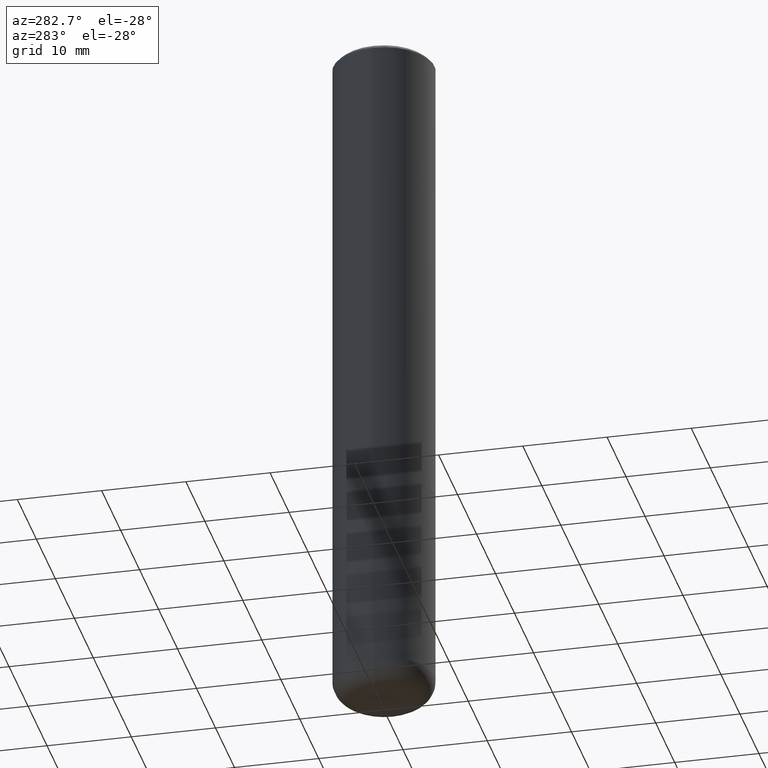
[diagram: clean part render]
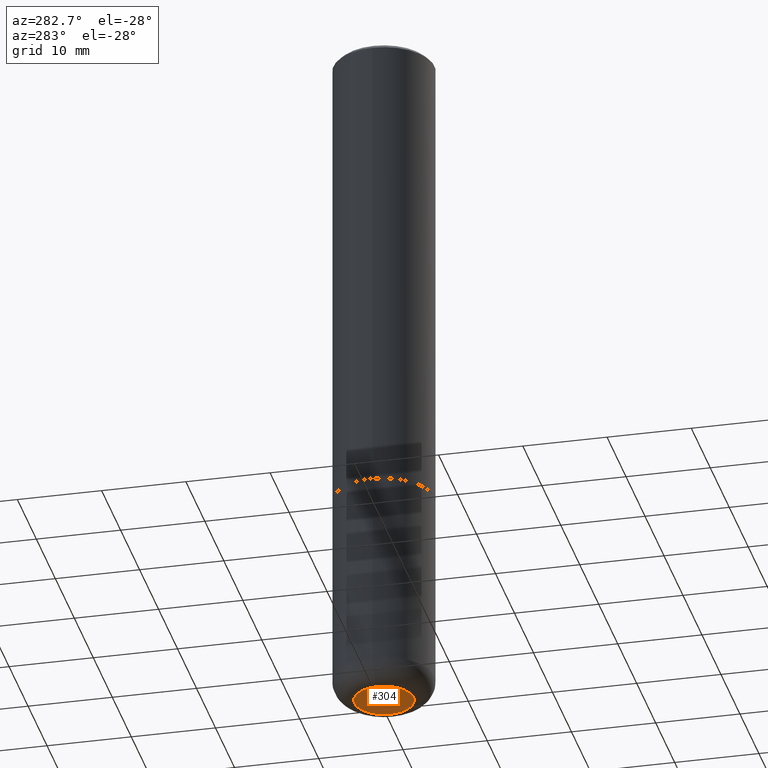
[diagram: same view with one face highlighted and labeled with its STEP entity id]
A machine part, auxiliary view. The second image highlights one B-rep face of the part: STEP entity #304.
In plain terms, the highlighted planar face has unit normal (0, -0, -1).
Its self-contained STEP definition (entity closure, byte-faithful):
#6 = EDGE_CURVE ( 'NONE', #20, #370, #293, .T. ) ;
#12 = DIRECTION ( 'NONE',  ( 2.438088387897960049E-29, -3.491481338843145188E-15, -1.000000000000000000 ) ) ;
#14 = PLANE ( 'NONE',  #103 ) ;
#20 = VERTEX_POINT ( 'NONE', #84 ) ;
#38 = DIRECTION ( 'NONE',  ( -1.000000000000000000, 6.982962677686265922E-15, -4.876176775795935793E-29 ) ) ;
#41 = EDGE_CURVE ( 'NONE', #370, #20, #268, .T. ) ;
#42 = CARTESIAN_POINT ( 'NONE',  ( -0.1378000000000000058, -9.908617773195273284E-15, -3.267700000000000937 ) ) ;
#54 = CARTESIAN_POINT ( 'NONE',  ( 7.991058417971172834E-29, -1.140911357093774960E-14, -3.267700000000000937 ) ) ;
#84 = CARTESIAN_POINT ( 'NONE',  ( 0.1378000000000000058, -1.237136582792291707E-14, -3.267700000000000937 ) ) ;
#95 = AXIS2_PLACEMENT_3D ( 'NONE', #54, #100, #113 ) ;
#100 = DIRECTION ( 'NONE',  ( -2.445468806185136597E-29, 3.491481338843145583E-15, 1.000000000000000000 ) ) ;
#103 = AXIS2_PLACEMENT_3D ( 'NONE', #324, #12, #38 ) ;
#113 = DIRECTION ( 'NONE',  ( 1.000000000000000000, -6.982962677686265922E-15, 0.000000000000000000 ) ) ;
#115 = CARTESIAN_POINT ( 'NONE',  ( 7.991058417971172834E-29, -1.140911357093774960E-14, -3.267700000000000937 ) ) ;
#156 = AXIS2_PLACEMENT_3D ( 'NONE', #115, #217, #342 ) ;
#165 = ORIENTED_EDGE ( 'NONE', *, *, #6, .F. ) ;
#167 = FACE_OUTER_BOUND ( 'NONE', #373, .T. ) ;
#217 = DIRECTION ( 'NONE',  ( -2.445468806185136597E-29, 3.491481338843145583E-15, 1.000000000000000000 ) ) ;
#268 = CIRCLE ( 'NONE', #95, 0.1378000000000000058 ) ;
#293 = CIRCLE ( 'NONE', #156, 0.1378000000000000058 ) ;
#304 = ADVANCED_FACE ( 'NONE', ( #167 ), #14, .T. ) ;
#308 = ORIENTED_EDGE ( 'NONE', *, *, #41, .F. ) ;
#324 = CARTESIAN_POINT ( 'NONE',  ( -1.056246086601801167E-29, -2.436536856207956870E-14, -3.267700000000000937 ) ) ;
#342 = DIRECTION ( 'NONE',  ( 1.000000000000000000, -6.982962677686265922E-15, 0.000000000000000000 ) ) ;
#370 = VERTEX_POINT ( 'NONE', #42 ) ;
#373 = EDGE_LOOP ( 'NONE', ( #165, #308 ) ) ;